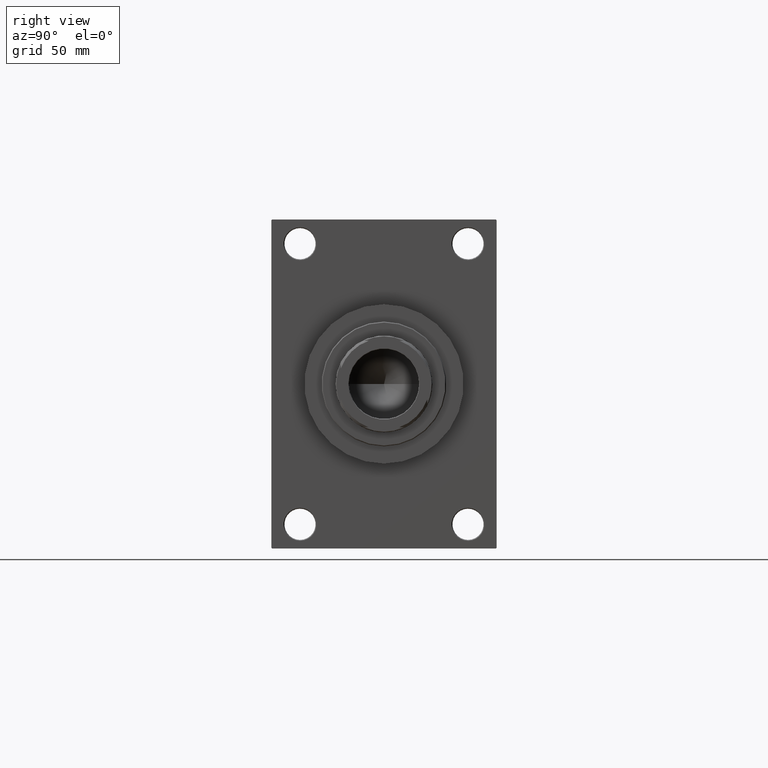
[diagram: clean part render]
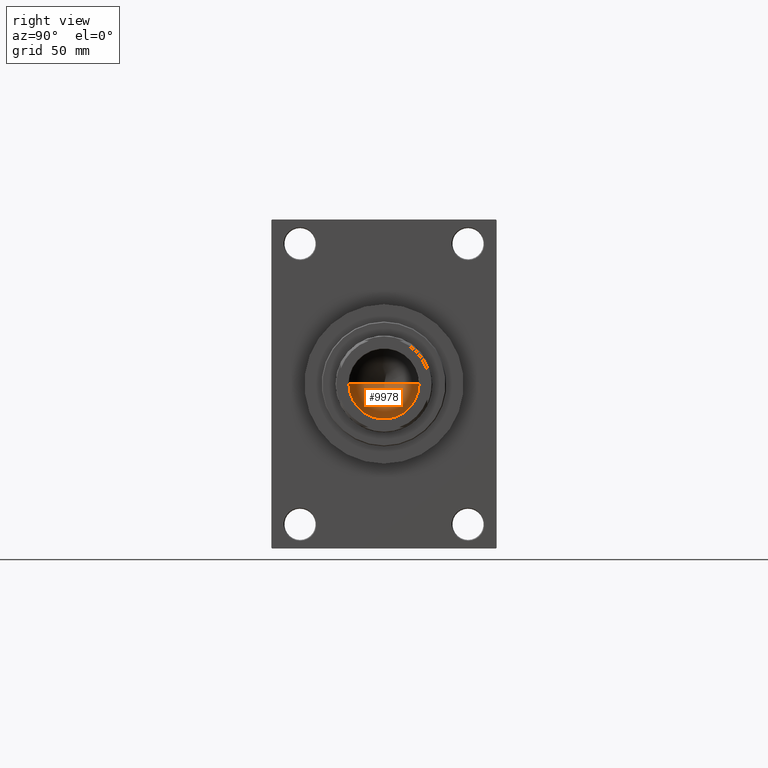
[diagram: same view with one face highlighted and labeled with its STEP entity id]
A machine part, right view. The second image highlights one B-rep face of the part: STEP entity #9978.
In plain terms, the highlighted conical surface has half-angle 59 deg.
Its self-contained STEP definition (entity closure, byte-faithful):
#1961 = CARTESIAN_POINT ( 'NONE',  ( 20.24999999999998934, 0.000000000000000000, 228.0000000000000284 ) ) ;
#4912 = CARTESIAN_POINT ( 'NONE',  ( -1.584115414415908206E-14, 0.000000000000000000, 215.8325724646919070 ) ) ;
#6021 = VERTEX_POINT ( 'NONE', #1961 ) ;
#6139 = CARTESIAN_POINT ( 'NONE',  ( 0.000000000000000000, 0.000000000000000000, 228.0000000000000284 ) ) ;
#7861 = DIRECTION ( 'NONE',  ( -0.000000000000000000, -0.000000000000000000, 1.000000000000000000 ) ) ;
#9009 = CONICAL_SURFACE ( 'NONE', #42158, 20.24999999999998934, 1.029744258676652313 ) ;
#9978 = ADVANCED_FACE ( 'NONE', ( #38029 ), #9009, .F. ) ;
#10239 = DIRECTION ( 'NONE',  ( 1.000000000000000000, 0.000000000000000000, 0.000000000000000000 ) ) ;
#12448 = DIRECTION ( 'NONE',  ( 1.000000000000000000, 0.000000000000000000, 0.000000000000000000 ) ) ;
#14070 = CIRCLE ( 'NONE', #35671, 20.24999999999998934 ) ;
#17644 = LINE ( 'NONE', #20555, #18836 ) ;
#18836 = VECTOR ( 'NONE', #47089, 1000.000000000000000 ) ;
#19179 = VECTOR ( 'NONE', #45502, 1000.000000000000000 ) ;
#20400 = DIRECTION ( 'NONE',  ( -0.000000000000000000, -0.000000000000000000, 1.000000000000000000 ) ) ;
#20555 = CARTESIAN_POINT ( 'NONE',  ( 20.24999999999998934, 0.000000000000000000, 228.0000000000000284 ) ) ;
#25758 = ORIENTED_EDGE ( 'NONE', *, *, #31247, .F. ) ;
#26193 = CARTESIAN_POINT ( 'NONE',  ( -20.24999999999998934, 2.479909768273389117E-15, 228.0000000000000284 ) ) ;
#26607 = EDGE_CURVE ( 'NONE', #6021, #39405, #14070, .T. ) ;
#27254 = ORIENTED_EDGE ( 'NONE', *, *, #26607, .T. ) ;
#29178 = ORIENTED_EDGE ( 'NONE', *, *, #47751, .T. ) ;
#30776 = LINE ( 'NONE', #26193, #19179 ) ;
#31247 = EDGE_CURVE ( 'NONE', #34959, #39405, #30776, .T. ) ;
#32821 = EDGE_LOOP ( 'NONE', ( #25758, #29178, #27254 ) ) ;
#34397 = CARTESIAN_POINT ( 'NONE',  ( 0.000000000000000000, 0.000000000000000000, 228.0000000000000284 ) ) ;
#34959 = VERTEX_POINT ( 'NONE', #4912 ) ;
#35671 = AXIS2_PLACEMENT_3D ( 'NONE', #6139, #20400, #10239 ) ;
#38029 = FACE_OUTER_BOUND ( 'NONE', #32821, .T. ) ;
#39405 = VERTEX_POINT ( 'NONE', #45207 ) ;
#42158 = AXIS2_PLACEMENT_3D ( 'NONE', #34397, #7861, #12448 ) ;
#45207 = CARTESIAN_POINT ( 'NONE',  ( -20.24999999999998934, 2.479909768273389117E-15, 228.0000000000000284 ) ) ;
#45502 = DIRECTION ( 'NONE',  ( -0.8571673007021112234, 1.049727191138617340E-16, 0.5150380749100560429 ) ) ;
#47089 = DIRECTION ( 'NONE',  ( 0.8571673007021112234, 0.000000000000000000, 0.5150380749100560429 ) ) ;
#47751 = EDGE_CURVE ( 'NONE', #34959, #6021, #17644, .T. ) ;